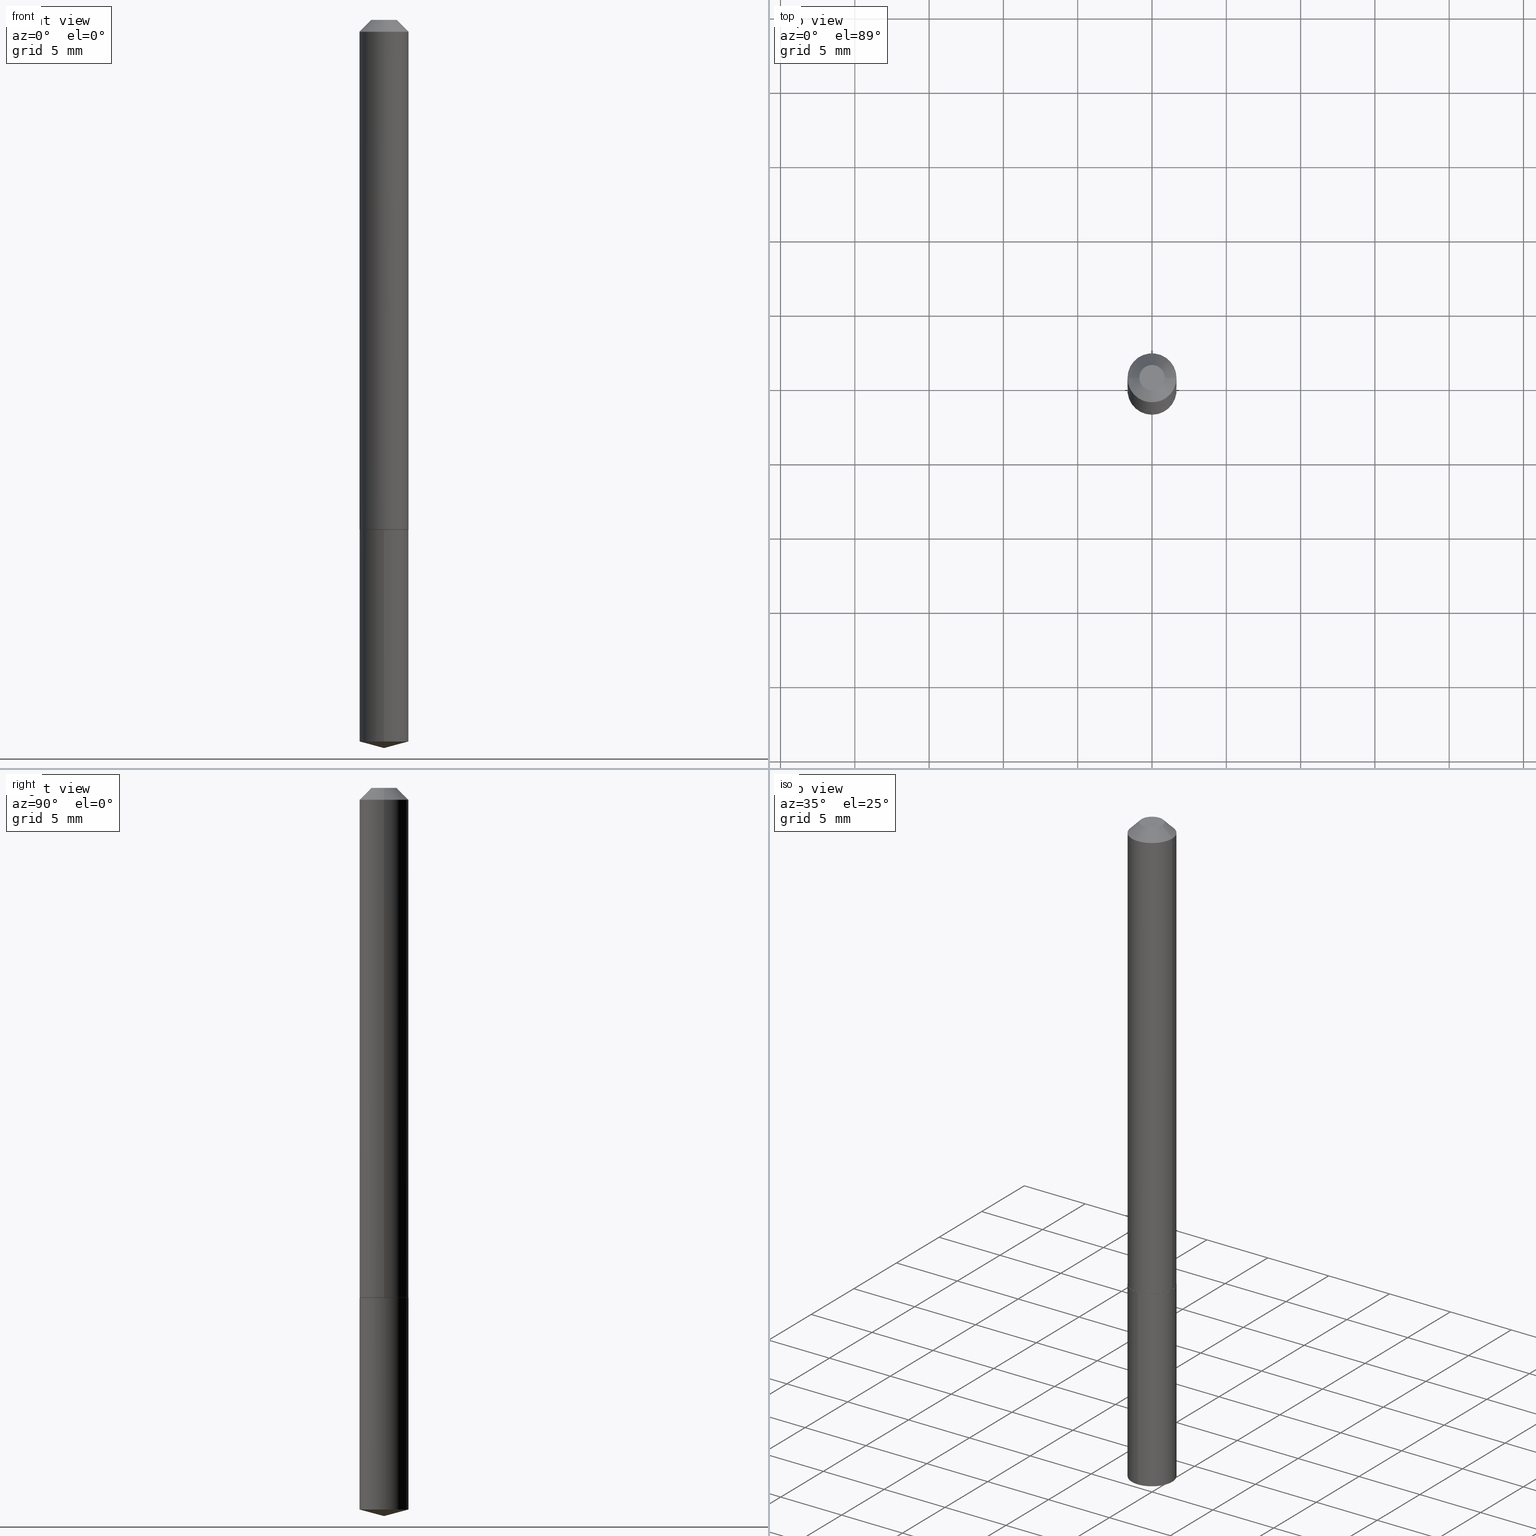
[diagram: canonical four-view strip — front | top / right | iso, engineering-drawing reading convention]
A machine part, canonical four-view strip (front | top / right | iso — engineering-drawing reading convention). The complete STEP part file that produces these views, byte-faithful:
ISO-10303-21;
HEADER;
FILE_DESCRIPTION (( 'STEP AP203' ),
    '1' );
FILE_NAME ('68968.STEP',
    '2024-04-23T13:56:20',
    ( '' ),
    ( '' ),
    'SwSTEP 2.0',
    'SolidWorks 2023',
    '' );
FILE_SCHEMA (( 'CONFIG_CONTROL_DESIGN' ));
ENDSEC;

DATA;
#1 = CALENDAR_DATE ( 2024, 23, 4 ) ;
#2 = ORIENTED_EDGE ( 'NONE', *, *, #301, .T. ) ;
#3 = CC_DESIGN_PERSON_AND_ORGANIZATION_ASSIGNMENT ( #248, #270, ( #71 ) ) ;
#4 = DATE_AND_TIME ( #1, #344 ) ;
#5 = DIRECTION ( 'NONE',  ( -6.982962677686267499E-15, -1.000000000000000000, 3.510303681827561547E-15 ) ) ;
#6 = CC_DESIGN_APPROVAL ( #62, ( #346 ) ) ;
#7 = DIRECTION ( 'NONE',  ( 1.000000000000000000, -6.982962677686265922E-15, 0.000000000000000000 ) ) ;
#8 = CARTESIAN_POINT ( 'NONE',  ( 4.717811205061667294E-29, -6.735048138052450726E-15, -1.929099999999999815 ) ) ;
#9 = ADVANCED_FACE ( 'NONE', ( #187 ), #216, .T. ) ;
#10 = FACE_OUTER_BOUND ( 'NONE', #363, .T. ) ;
#11 = CIRCLE ( 'NONE', #195, 0.06494999999999999385 ) ;
#12 = DIRECTION ( 'NONE',  ( -2.445468806185136877E-29, 3.491481338843145188E-15, 1.000000000000000000 ) ) ;
#13 = EDGE_CURVE ( 'NONE', #220, #328, #364, .T. ) ;
#14 = CARTESIAN_POINT ( 'NONE',  ( 3.302116528991790311E-29, -4.714547251839899498E-15, -1.350300000000000056 ) ) ;
#15 = DIRECTION ( 'NONE',  ( -6.982962677686266711E-15, -1.000000000000000000, 4.206078512185163024E-15 ) ) ;
#16 = PLANE ( 'NONE',  #146 ) ;
#17 = ORGANIZATION ( 'UNSPECIFIED', 'UNSPECIFIED', '' ) ;
#18 = ORIENTED_EDGE ( 'NONE', *, *, #265, .F. ) ;
#19 = APPLICATION_CONTEXT ( 'configuration controlled 3d designs of mechanical parts and assemblies' ) ;
#20 = ORIENTED_EDGE ( 'NONE', *, *, #281, .F. ) ;
#21 =( CONVERSION_BASED_UNIT ( 'INCH', #296 ) LENGTH_UNIT ( ) NAMED_UNIT ( #194 ) );
#22 = VECTOR ( 'NONE', #282, 39.37007874015748854 ) ;
#23 = VERTEX_POINT ( 'NONE', #101 ) ;
#24 = AXIS2_PLACEMENT_3D ( 'NONE', #137, #284, #78 ) ;
#25 = EDGE_CURVE ( 'NONE', #121, #55, #340, .T. ) ;
#26 = EDGE_CURVE ( 'NONE', #328, #307, #56, .T. ) ;
#27 = PERSON_AND_ORGANIZATION ( #66, #17 ) ;
#28 = ORIENTED_EDGE ( 'NONE', *, *, #281, .T. ) ;
#29 = DIRECTION ( 'NONE',  ( -2.445602200539976183E-29, 3.491290310534680378E-15, 1.000000000000000000 ) ) ;
#30 = ORIENTED_EDGE ( 'NONE', *, *, #348, .F. ) ;
#31 = CC_DESIGN_PERSON_AND_ORGANIZATION_ASSIGNMENT ( #191, #153, ( #71 ) ) ;
#32 = DIRECTION ( 'NONE',  ( 0.7071067811866078578, -2.468850131082888544E-15, 0.7071067811864871766 ) ) ;
#33 = AXIS2_PLACEMENT_3D ( 'NONE', #141, #202, #329 ) ;
#34 = FACE_OUTER_BOUND ( 'NONE', #386, .T. ) ;
#35 = DIRECTION ( 'NONE',  ( -2.445602200539976183E-29, 3.491290310534680378E-15, 1.000000000000000000 ) ) ;
#36 = DIRECTION ( 'NONE',  ( 2.445468806185136597E-29, -3.491481338843145583E-15, -1.000000000000000000 ) ) ;
#37 = CIRCLE ( 'NONE', #90, 0.03369999999999999385 ) ;
#38 = CC_DESIGN_APPROVAL ( #122, ( #304 ) ) ;
#39 = APPROVAL_ROLE ( '' ) ;
#40 = CARTESIAN_POINT ( 'NONE',  ( 0.03369999999999999385, -3.929484596595052854E-16, 2.388061258359294556E-19 ) ) ;
#41 = DIRECTION ( 'NONE',  ( 1.000000000000000000, -6.982962677686265922E-15, 4.876176775795935793E-29 ) ) ;
#42 = DIRECTION ( 'NONE',  ( -2.445468806185136597E-29, 3.491481338843145583E-15, 1.000000000000000000 ) ) ;
#43 = CIRCLE ( 'NONE', #356, 0.06494999999999999385 ) ;
#44 = DIRECTION ( 'NONE',  ( 1.000000000000000000, -6.982962677686265133E-15, 0.000000000000000000 ) ) ;
#45 = DIRECTION ( 'NONE',  ( 1.000000000000000000, -6.982962677686265922E-15, 0.000000000000000000 ) ) ;
#46 = CARTESIAN_POINT ( 'NONE',  ( 4.717814363983281700E-29, -6.735048138052451515E-15, -1.929099999999999815 ) ) ;
#47 = CONICAL_SURFACE ( 'NONE', #161, 146.9311341562583095, 1.308996938995752757 ) ;
#48 = EDGE_CURVE ( 'NONE', #220, #382, #278, .T. ) ;
#49 = AXIS2_PLACEMENT_3D ( 'NONE', #134, #107, #44 ) ;
#50 = CARTESIAN_POINT ( 'NONE',  ( -0.06494999999999999385, -1.949457644628476450E-15, -0.03125000000000020123 ) ) ;
#51 = EDGE_LOOP ( 'NONE', ( #293, #211, #236, #299 ) ) ;
#52 = DIRECTION ( 'NONE',  ( -2.445602200539976183E-29, 3.491290310534680378E-15, 1.000000000000000000 ) ) ;
#53 = ORIENTED_EDGE ( 'NONE', *, *, #128, .F. ) ;
#54 = DATE_TIME_ROLE ( 'creation_date' ) ;
#55 = VERTEX_POINT ( 'NONE', #215 ) ;
#56 = CIRCLE ( 'NONE', #193, 0.06495000000000016038 ) ;
#57 = ORIENTED_EDGE ( 'NONE', *, *, #274, .T. ) ;
#58 = CIRCLE ( 'NONE', #285, 0.06495000000000016038 ) ;
#59 = FACE_OUTER_BOUND ( 'NONE', #51, .T. ) ;
#60 = ORIENTED_EDGE ( 'NONE', *, *, #110, .F. ) ;
#61 = DIRECTION ( 'NONE',  ( -6.982962677686266711E-15, -1.000000000000000000, 4.206078512185163024E-15 ) ) ;
#62 = APPROVAL ( #79, 'UNSPECIFIED' ) ;
#63 = DIRECTION ( 'NONE',  ( -2.445468806185136597E-29, 3.491481338843145583E-15, 1.000000000000000000 ) ) ;
#64 = VECTOR ( 'NONE', #160, 39.37007874015748143 ) ;
#65 = LOCAL_TIME ( 9, 56, 20.00000000000000000, #367 ) ;
#66 = PERSON ( 'UNSPECIFIED', 'UNSPECIFIED', 'UNSPECIFIED', ('UNSPECIFIED'), ('UNSPECIFIED'), ('UNSPECIFIED') ) ;
#67 = DIRECTION ( 'NONE',  ( -2.445468806185136597E-29, 3.491481338843145583E-15, 1.000000000000000000 ) ) ;
#68 = ORIENTED_EDGE ( 'NONE', *, *, #269, .T. ) ;
#69 = DIRECTION ( 'NONE',  ( 0.7071067811865452413, -7.319954787623248157E-15, -0.7071067811865497932 ) ) ;
#70 = ADVANCED_FACE ( 'NONE', ( #221 ), #343, .T. ) ;
#71 = PRODUCT_DEFINITION_FORMATION_WITH_SPECIFIED_SOURCE ( 'ANY', '', #315, .NOT_KNOWN. ) ;
#72 = FACE_OUTER_BOUND ( 'NONE', #388, .T. ) ;
#73 = LINE ( 'NONE', #46, #325 ) ;
#74 = DIRECTION ( 'NONE',  ( -2.445468806185136597E-29, 3.491481338843145583E-15, 1.000000000000000000 ) ) ;
#75 = APPROVAL ( #276, 'UNSPECIFIED' ) ;
#76 = CONICAL_SURFACE ( 'NONE', #311, 0.06494999999999999385, 0.7853981633974450594 ) ;
#77 = LINE ( 'NONE', #102, #272 ) ;
#78 = DIRECTION ( 'NONE',  ( -6.982962677686266711E-15, -1.000000000000000000, 4.206078512185163024E-15 ) ) ;
#79 = APPROVAL_STATUS ( 'not_yet_approved' ) ;
#80 = MANIFOLD_SOLID_BREP ( 'Body-Move/Copy2[1]', #247 ) ;
#81 = CLOSED_SHELL ( 'NONE', ( #322, #326, #330, #320, #214, #70, #9, #255 ) ) ;
#82 = CARTESIAN_POINT ( 'NONE',  ( 4.675069533769300408E-29, -6.674546110747061798E-15, -1.911696699951598966 ) ) ;
#83 = ORIENTED_EDGE ( 'NONE', *, *, #265, .T. ) ;
#84 = DATE_AND_TIME ( #235, #279 ) ;
#85 = CC_DESIGN_PERSON_AND_ORGANIZATION_ASSIGNMENT ( #245, #189, ( #304 ) ) ;
#86 = EDGE_LOOP ( 'NONE', ( #18, #342 ) ) ;
#87 = EDGE_CURVE ( 'NONE', #382, #307, #157, .T. ) ;
#88 = ORIENTED_EDGE ( 'NONE', *, *, #115, .F. ) ;
#89 = DATE_AND_TIME ( #113, #351 ) ;
#90 = AXIS2_PLACEMENT_3D ( 'NONE', #302, #133, #390 ) ;
#91 = CIRCLE ( 'NONE', #49, 0.06494999999999999385 ) ;
#92 = COORDINATED_UNIVERSAL_TIME_OFFSET ( 5, 0, .BEHIND. ) ;
#93 = ORIENTED_EDGE ( 'NONE', *, *, #13, .F. ) ;
#94 = DATE_TIME_ROLE ( 'classification_date' ) ;
#95 = LINE ( 'NONE', #158, #183 ) ;
#96 = CARTESIAN_POINT ( 'NONE',  ( 0.06494999999999999385, -5.626522177545718995E-16, -0.03125000000000020123 ) ) ;
#97 = CALENDAR_DATE ( 2024, 23, 4 ) ;
#98 = FACE_OUTER_BOUND ( 'NONE', #174, .T. ) ;
#99 = ADVANCED_FACE ( 'NONE', ( #244 ), #47, .T. ) ;
#100 = COORDINATED_UNIVERSAL_TIME_OFFSET ( 5, 0, .BEHIND. ) ;
#101 = CARTESIAN_POINT ( 'NONE',  ( -4.535434259156762560E-16, -0.06495000000000668294, -1.911696699951598521 ) ) ;
#102 = CARTESIAN_POINT ( 'NONE',  ( -0.06494999999999999385, 3.444346340768739447E-16, -0.03125000000000020123 ) ) ;
#103 = CC_DESIGN_APPROVAL ( #75, ( #71 ) ) ;
#104 = FACE_OUTER_BOUND ( 'NONE', #151, .T. ) ;
#105 = CC_DESIGN_PERSON_AND_ORGANIZATION_ASSIGNMENT ( #233, #327, ( #346 ) ) ;
#106 = CARTESIAN_POINT ( 'NONE',  ( 3.302116528991790311E-29, -4.714547251839899498E-15, -1.350300000000000056 ) ) ;
#107 = DIRECTION ( 'NONE',  ( -2.445468806185136597E-29, 3.491481338843145583E-15, 1.000000000000000000 ) ) ;
#108 = VECTOR ( 'NONE', #225, 39.37007874015748143 ) ;
#109 = DIRECTION ( 'NONE',  ( 6.982962677686265922E-15, 1.000000000000000000, -3.491290310534680772E-15 ) ) ;
#110 = EDGE_CURVE ( 'NONE', #120, #114, #95, .T. ) ;
#111 = PERSON_AND_ORGANIZATION ( #66, #17 ) ;
#112 = APPLICATION_CONTEXT ( 'configuration controlled 3d designs of mechanical parts and assemblies' ) ;
#113 = CALENDAR_DATE ( 2024, 23, 4 ) ;
#114 = VERTEX_POINT ( 'NONE', #96 ) ;
#115 = EDGE_CURVE ( 'NONE', #121, #23, #259, .T. ) ;
#116 = CONICAL_SURFACE ( 'NONE', #154, 0.06495000000000016038, 0.7853981633975336552 ) ;
#117 = DIRECTION ( 'NONE',  ( -2.445468806185136597E-29, 3.491481338843145583E-15, 1.000000000000000000 ) ) ;
#118 = ORIENTED_EDGE ( 'NONE', *, *, #110, .T. ) ;
#119 = CARTESIAN_POINT ( 'NONE',  ( 0.000000000000000000, 0.000000000000000000, 0.000000000000000000 ) ) ;
#120 = VERTEX_POINT ( 'NONE', #40 ) ;
#121 = VERTEX_POINT ( 'NONE', #181 ) ;
#122 = APPROVAL ( #129, 'UNSPECIFIED' ) ;
#123 = ORIENTED_EDGE ( 'NONE', *, *, #87, .F. ) ;
#124 = AXIS2_PLACEMENT_3D ( 'NONE', #246, #277, #5 ) ;
#125 = CARTESIAN_POINT ( 'NONE',  ( 4.614975068762179620E-16, 0.06494999999999528928, -1.350300000000000278 ) ) ;
#126 = DIRECTION ( 'NONE',  ( -2.445602200539976183E-29, 3.491290310534680772E-15, 1.000000000000000000 ) ) ;
#127 = CC_DESIGN_PERSON_AND_ORGANIZATION_ASSIGNMENT ( #27, #385, ( #315 ) ) ;
#128 = EDGE_CURVE ( 'NONE', #142, #23, #338, .T. ) ;
#129 = APPROVAL_STATUS ( 'not_yet_approved' ) ;
#130 = EDGE_LOOP ( 'NONE', ( #60, #262, #68, #290 ) ) ;
#131 = AXIS2_PLACEMENT_3D ( 'NONE', #167, #228, #283 ) ;
#132 = CARTESIAN_POINT ( 'NONE',  ( 0.000000000000000000, 0.000000000000000000, 0.000000000000000000 ) ) ;
#133 = DIRECTION ( 'NONE',  ( -2.445468806185136597E-29, 3.491481338843145583E-15, 1.000000000000000000 ) ) ;
#134 = CARTESIAN_POINT ( 'NONE',  ( 7.642090019328601786E-31, -1.091087918388490144E-16, -0.03125000000000020123 ) ) ;
#135 = AXIS2_PLACEMENT_3D ( 'NONE', #288, #42, #136 ) ;
#136 = DIRECTION ( 'NONE',  ( 1.000000000000000000, -6.982962677686269077E-15, 0.000000000000000000 ) ) ;
#137 = CARTESIAN_POINT ( 'NONE',  ( 3.302116528991790311E-29, -4.714547251839899498E-15, -1.350300000000000056 ) ) ;
#138 = PLANE ( 'NONE',  #131 ) ;
#139 = AXIS2_PLACEMENT_3D ( 'NONE', #334, #117, #204 ) ;
#140 = CARTESIAN_POINT ( 'NONE',  ( -0.03369999999999999385, 2.898802381574505777E-16, 2.388061258318971361E-19 ) ) ;
#141 = CARTESIAN_POINT ( 'NONE',  ( 0.000000000000000000, 0.000000000000000000, 0.000000000000000000 ) ) ;
#142 = VERTEX_POINT ( 'NONE', #8 ) ;
#143 = EDGE_CURVE ( 'NONE', #120, #267, #332, .T. ) ;
#144 = APPROVAL_ROLE ( '' ) ;
#145 = ORIENTED_EDGE ( 'NONE', *, *, #115, .T. ) ;
#146 = AXIS2_PLACEMENT_3D ( 'NONE', #261, #314, #41 ) ;
#147 = APPLICATION_PROTOCOL_DEFINITION ( 'international standard', 'config_control_design', 1994, #19 ) ;
#148 = ORIENTED_EDGE ( 'NONE', *, *, #292, .T. ) ;
#149 = DIRECTION ( 'NONE',  ( 1.000000000000000000, -6.982962677686267499E-15, 4.876176775795936914E-29 ) ) ;
#150 = CC_DESIGN_DATE_AND_TIME_ASSIGNMENT ( #4, #94, ( #304 ) ) ;
#151 = EDGE_LOOP ( 'NONE', ( #93, #243, #205, #240 ) ) ;
#152 = EDGE_LOOP ( 'NONE', ( #234, #335, #28, #177 ) ) ;
#153 = PERSON_AND_ORGANIZATION_ROLE ( 'design_supplier' ) ;
#154 = AXIS2_PLACEMENT_3D ( 'NONE', #352, #200, #317 ) ;
#155 = CARTESIAN_POINT ( 'NONE',  ( 0.06495000000000016038, -5.166344937086201976E-15, -1.349800000000000111 ) ) ;
#156 = DATE_AND_TIME ( #97, #65 ) ;
#157 = LINE ( 'NONE', #155, #323 ) ;
#158 = CARTESIAN_POINT ( 'NONE',  ( 0.06494999999999999385, -5.546981367941099671E-16, -0.03125000000000020123 ) ) ;
#159 = APPROVAL_DATE_TIME ( #217, #75 ) ;
#160 = DIRECTION ( 'NONE',  ( -0.7071067811866078578, 7.493145998870571886E-15, 0.7071067811864871766 ) ) ;
#161 = AXIS2_PLACEMENT_3D ( 'NONE', #368, #306, #336 ) ;
#162 = AXIS2_PLACEMENT_3D ( 'NONE', #349, #74, #287 ) ;
#163 = EDGE_CURVE ( 'NONE', #267, #120, #37, .T. ) ;
#164 = CARTESIAN_POINT ( 'NONE',  ( 4.717450960266987548E-29, -6.735564029102293055E-15, -1.929099999999999815 ) ) ;
#165 = CARTESIAN_POINT ( 'NONE',  ( -0.06495000000000007712, 4.614975068761856187E-16, -3.194848341120565109E-30 ) ) ;
#166 = PLANE ( 'NONE',  #362 ) ;
#167 = CARTESIAN_POINT ( 'NONE',  ( -2.919964657261587705E-48, 4.168935659749540379E-34, 1.194030629168666829E-19 ) ) ;
#168 = DIRECTION ( 'NONE',  ( -2.445602200539976183E-29, 3.491290310534680378E-15, 1.000000000000000000 ) ) ;
#169 = DIRECTION ( 'NONE',  ( -6.982962677686266711E-15, -1.000000000000000000, 4.206078512185163024E-15 ) ) ;
#170 = AXIS2_PLACEMENT_3D ( 'NONE', #273, #63, #365 ) ;
#171 = VECTOR ( 'NONE', #12, 39.37007874015748143 ) ;
#172 = ORIENTED_EDGE ( 'NONE', *, *, #269, .F. ) ;
#173 = CARTESIAN_POINT ( 'NONE',  ( 0.06445000000000018769, -5.164599196416781262E-15, -1.350300000000000056 ) ) ;
#174 = EDGE_LOOP ( 'NONE', ( #190, #358 ) ) ;
#175 = PERSON_AND_ORGANIZATION ( #66, #17 ) ;
#176 = ORIENTED_EDGE ( 'NONE', *, *, #163, .T. ) ;
#177 = ORIENTED_EDGE ( 'NONE', *, *, #309, .F. ) ;
#178 = CARTESIAN_POINT ( 'NONE',  ( -4.535434259156899625E-16, -0.06495000000000471230, -1.350299999999999834 ) ) ;
#179 = ORIENTED_EDGE ( 'NONE', *, *, #13, .T. ) ;
#180 = ADVANCED_FACE ( 'NONE', ( #34 ), #241, .T. ) ;
#181 = CARTESIAN_POINT ( 'NONE',  ( 4.614975068762317670E-16, 0.06494999999999333251, -1.911696699951599188 ) ) ;
#182 = DESIGN_CONTEXT ( 'detailed design', #19, 'design' ) ;
#183 = VECTOR ( 'NONE', #69, 39.37007874015748143 ) ;
#184 = PERSON_AND_ORGANIZATION ( #66, #17 ) ;
#185 = CIRCLE ( 'NONE', #162, 0.06494999999999999385 ) ;
#186 = DIRECTION ( 'NONE',  ( -2.445468806185136597E-29, 3.491481338843145583E-15, 1.000000000000000000 ) ) ;
#187 = FACE_OUTER_BOUND ( 'NONE', #130, .T. ) ;
#188 = ADVANCED_FACE ( 'NONE', ( #98 ), #166, .F. ) ;
#189 = PERSON_AND_ORGANIZATION_ROLE ( 'classification_officer' ) ;
#190 = ORIENTED_EDGE ( 'NONE', *, *, #229, .T. ) ;
#191 = PERSON_AND_ORGANIZATION ( #66, #17 ) ;
#192 = ORIENTED_EDGE ( 'NONE', *, *, #143, .F. ) ;
#193 = AXIS2_PLACEMENT_3D ( 'NONE', #252, #280, #7 ) ;
#194 = DIMENSIONAL_EXPONENTS ( 1.000000000000000000, 0.000000000000000000, 0.000000000000000000, 0.000000000000000000, 0.000000000000000000, 0.000000000000000000, 0.000000000000000000 ) ;
#195 = AXIS2_PLACEMENT_3D ( 'NONE', #82, #52, #294 ) ;
#196 = DIRECTION ( 'NONE',  ( -0.7071067811865452413, 2.468850131082233000E-15, -0.7071067811865497932 ) ) ;
#197 = DIRECTION ( 'NONE',  ( -1.000000000000000000, 6.982962677686266711E-15, 0.000000000000000000 ) ) ;
#198 = FACE_OUTER_BOUND ( 'NONE', #86, .T. ) ;
#199 = AXIS2_PLACEMENT_3D ( 'NONE', #312, #35, #61 ) ;
#200 = DIRECTION ( 'NONE',  ( -2.445468806185136597E-29, 3.491481338843145583E-15, 1.000000000000000000 ) ) ;
#201 = DIRECTION ( 'NONE',  ( -2.445468806185136597E-29, 3.491481338843145583E-15, 1.000000000000000000 ) ) ;
#202 = DIRECTION ( 'NONE',  ( 0.000000000000000000, 0.000000000000000000, 1.000000000000000000 ) ) ;
#203 =( GEOMETRIC_REPRESENTATION_CONTEXT ( 3 ) GLOBAL_UNCERTAINTY_ASSIGNED_CONTEXT ( ( #337 ) ) GLOBAL_UNIT_ASSIGNED_CONTEXT ( ( #21, #378, #354 ) ) REPRESENTATION_CONTEXT ( 'NONE', 'WORKASPACE' ) );
#204 = DIRECTION ( 'NONE',  ( 1.000000000000000000, -6.982962677686265922E-15, 0.000000000000000000 ) ) ;
#205 = ORIENTED_EDGE ( 'NONE', *, *, #87, .T. ) ;
#206 = ORIENTED_EDGE ( 'NONE', *, *, #232, .F. ) ;
#207 = CYLINDRICAL_SURFACE ( 'NONE', #218, 0.06494999999999999385 ) ;
#208 = AXIS2_PLACEMENT_3D ( 'NONE', #370, #186, #305 ) ;
#209 = APPROVAL_PERSON_ORGANIZATION ( #184, #122, #39 ) ;
#210 = FACE_OUTER_BOUND ( 'NONE', #219, .T. ) ;
#211 = ORIENTED_EDGE ( 'NONE', *, *, #25, .T. ) ;
#212 = SHAPE_DEFINITION_REPRESENTATION ( #318, #308 ) ;
#213 = DIRECTION ( 'NONE',  ( 1.000000000000000000, -6.982962677686267499E-15, 4.876176775795936914E-29 ) ) ;
#214 = ADVANCED_FACE ( 'NONE', ( #104 ), #116, .T. ) ;
#215 = CARTESIAN_POINT ( 'NONE',  ( 4.614975068762317670E-16, 0.06494999999999528928, -1.350300000000000278 ) ) ;
#216 = CONICAL_SURFACE ( 'NONE', #375, 0.06494999999999999385, 0.7853981633974450594 ) ;
#217 = DATE_AND_TIME ( #300, #377 ) ;
#218 = AXIS2_PLACEMENT_3D ( 'NONE', #266, #29, #237 ) ;
#219 = EDGE_LOOP ( 'NONE', ( #83, #179, #271, #123 ) ) ;
#220 = VERTEX_POINT ( 'NONE', #373 ) ;
#221 = FACE_OUTER_BOUND ( 'NONE', #152, .T. ) ;
#222 = AXIS2_PLACEMENT_3D ( 'NONE', #132, #67, #213 ) ;
#223 = FACE_OUTER_BOUND ( 'NONE', #268, .T. ) ;
#224 = CIRCLE ( 'NONE', #366, 0.06494999999999999385 ) ;
#225 = DIRECTION ( 'NONE',  ( -2.445602200539976183E-29, 3.491290310534680772E-15, 1.000000000000000000 ) ) ;
#226 = EDGE_CURVE ( 'NONE', #55, #360, #43, .T. ) ;
#227 = CARTESIAN_POINT ( 'NONE',  ( -4.535434259156899625E-16, -0.06495000000000471230, -1.350299999999999834 ) ) ;
#228 = DIRECTION ( 'NONE',  ( 2.438088387897960049E-29, -3.491481338843145188E-15, -1.000000000000000000 ) ) ;
#229 = EDGE_CURVE ( 'NONE', #360, #55, #224, .T. ) ;
#230 = DIRECTION ( 'NONE',  ( 2.445602200539975343E-29, -3.491290310534680772E-15, -1.000000000000000000 ) ) ;
#231 = CYLINDRICAL_SURFACE ( 'NONE', #383, 0.06495000000000007712 ) ;
#232 = EDGE_CURVE ( 'NONE', #114, #331, #91, .T. ) ;
#233 = PERSON_AND_ORGANIZATION ( #66, #17 ) ;
#234 = ORIENTED_EDGE ( 'NONE', *, *, #274, .F. ) ;
#235 = CALENDAR_DATE ( 2024, 23, 4 ) ;
#236 = ORIENTED_EDGE ( 'NONE', *, *, #229, .F. ) ;
#237 = DIRECTION ( 'NONE',  ( -6.982962677686266711E-15, -1.000000000000000000, 4.206078512185163024E-15 ) ) ;
#238 = CC_DESIGN_DATE_AND_TIME_ASSIGNMENT ( #84, #54, ( #346 ) ) ;
#239 = EDGE_LOOP ( 'NONE', ( #148, #57, #206, #20 ) ) ;
#240 = ORIENTED_EDGE ( 'NONE', *, *, #26, .F. ) ;
#241 = CONICAL_SURFACE ( 'NONE', #124, 146.9311341562583095, 1.308996938995752757 ) ;
#242 = CIRCLE ( 'NONE', #135, 0.06445000000000018769 ) ;
#243 = ORIENTED_EDGE ( 'NONE', *, *, #48, .T. ) ;
#244 = FACE_OUTER_BOUND ( 'NONE', #295, .T. ) ;
#245 = PERSON_AND_ORGANIZATION ( #66, #17 ) ;
#246 = CARTESIAN_POINT ( 'NONE',  ( -9.156592011969693479E-28, 1.307170683469218614E-13, 37.44097874015747607 ) ) ;
#247 = CLOSED_SHELL ( 'NONE', ( #341, #180, #99, #291, #188 ) ) ;
#248 = PERSON_AND_ORGANIZATION ( #66, #17 ) ;
#249 = APPROVAL_PERSON_ORGANIZATION ( #111, #62, #144 ) ;
#250 = DIRECTION ( 'NONE',  ( -1.000000000000000000, 6.982962677686266711E-15, 0.000000000000000000 ) ) ;
#251 = CARTESIAN_POINT ( 'NONE',  ( 7.642090019328601786E-31, -1.091087918388490144E-16, -0.03125000000000020123 ) ) ;
#252 = CARTESIAN_POINT ( 'NONE',  ( 3.300893794588698070E-29, -4.712801511170477994E-15, -1.349800000000000111 ) ) ;
#253 = CARTESIAN_POINT ( 'NONE',  ( 0.06495000000000016038, -5.166344937086201976E-15, -1.349800000000000111 ) ) ;
#254 = APPROVAL_PERSON_ORGANIZATION ( #175, #75, #387 ) ;
#255 = ADVANCED_FACE ( 'NONE', ( #72 ), #138, .F. ) ;
#256 = CARTESIAN_POINT ( 'NONE',  ( 3.300893794588698070E-29, -4.712801511170477994E-15, -1.349800000000000111 ) ) ;
#257 = DIRECTION ( 'NONE',  ( -2.445602200539976183E-29, 3.491290310534680378E-15, 1.000000000000000000 ) ) ;
#258 = CARTESIAN_POINT ( 'NONE',  ( 3.302116528991790311E-29, -4.714547251839899498E-15, -1.350300000000000056 ) ) ;
#259 = CIRCLE ( 'NONE', #199, 0.06494999999999999385 ) ;
#260 = CC_DESIGN_SECURITY_CLASSIFICATION ( #304, ( #71 ) ) ;
#261 = CARTESIAN_POINT ( 'NONE',  ( 3.302116528991790311E-29, -4.714547251839899498E-15, -1.350300000000000056 ) ) ;
#262 = ORIENTED_EDGE ( 'NONE', *, *, #163, .F. ) ;
#263 = COORDINATED_UNIVERSAL_TIME_OFFSET ( 5, 0, .BEHIND. ) ;
#264 = ORIENTED_EDGE ( 'NONE', *, *, #128, .T. ) ;
#265 = EDGE_CURVE ( 'NONE', #382, #220, #242, .T. ) ;
#266 = CARTESIAN_POINT ( 'NONE',  ( 3.302116528991790311E-29, -4.714547251839899498E-15, -1.350300000000000056 ) ) ;
#267 = VERTEX_POINT ( 'NONE', #140 ) ;
#268 = EDGE_LOOP ( 'NONE', ( #324, #145, #2, #384 ) ) ;
#269 = EDGE_CURVE ( 'NONE', #267, #331, #77, .T. ) ;
#270 = PERSON_AND_ORGANIZATION_ROLE ( 'creator' ) ;
#271 = ORIENTED_EDGE ( 'NONE', *, *, #292, .F. ) ;
#272 = VECTOR ( 'NONE', #196, 39.37007874015748143 ) ;
#273 = CARTESIAN_POINT ( 'NONE',  ( 3.302116528991790311E-29, -4.714547251839899498E-15, -1.350300000000000056 ) ) ;
#274 = EDGE_CURVE ( 'NONE', #328, #331, #374, .T. ) ;
#275 = ORIENTED_EDGE ( 'NONE', *, *, #143, .T. ) ;
#276 = APPROVAL_STATUS ( 'not_yet_approved' ) ;
#277 = DIRECTION ( 'NONE',  ( -2.445602200539976183E-29, 3.491290310534680378E-15, 1.000000000000000000 ) ) ;
#278 = CIRCLE ( 'NONE', #170, 0.06445000000000018769 ) ;
#279 = LOCAL_TIME ( 9, 56, 20.00000000000000000, #263 ) ;
#280 = DIRECTION ( 'NONE',  ( -2.445468806185136597E-29, 3.491481338843145583E-15, 1.000000000000000000 ) ) ;
#281 = EDGE_CURVE ( 'NONE', #307, #114, #345, .T. ) ;
#282 = DIRECTION ( 'NONE',  ( -6.745023994389847021E-15, -0.9659258262890687563, 0.2588190451025186856 ) ) ;
#283 = DIRECTION ( 'NONE',  ( -1.000000000000000000, 6.982962677686265922E-15, -4.876176775795935793E-29 ) ) ;
#284 = DIRECTION ( 'NONE',  ( -2.445602200539976183E-29, 3.491290310534680378E-15, 1.000000000000000000 ) ) ;
#285 = AXIS2_PLACEMENT_3D ( 'NONE', #256, #201, #45 ) ;
#286 = CARTESIAN_POINT ( 'NONE',  ( 0.06495000000000007712, -4.535434259157235877E-16, 3.167076815879464619E-30 ) ) ;
#287 = DIRECTION ( 'NONE',  ( 1.000000000000000000, -6.982962677686265133E-15, 0.000000000000000000 ) ) ;
#288 = CARTESIAN_POINT ( 'NONE',  ( 3.302116528991790311E-29, -4.714547251839899498E-15, -1.350300000000000056 ) ) ;
#289 = APPLICATION_PROTOCOL_DEFINITION ( 'international standard', 'config_control_design', 1994, #112 ) ;
#290 = ORIENTED_EDGE ( 'NONE', *, *, #309, .T. ) ;
#291 = ADVANCED_FACE ( 'NONE', ( #223 ), #319, .T. ) ;
#292 = EDGE_CURVE ( 'NONE', #307, #328, #58, .T. ) ;
#293 = ORIENTED_EDGE ( 'NONE', *, *, #348, .T. ) ;
#294 = DIRECTION ( 'NONE',  ( -6.982962677686266711E-15, -1.000000000000000000, 4.206078512185163024E-15 ) ) ;
#295 = EDGE_LOOP ( 'NONE', ( #379, #264, #88 ) ) ;
#296 = LENGTH_MEASURE_WITH_UNIT ( LENGTH_MEASURE( 0.02539999999999999897 ), #359 );
#297 = ORIENTED_EDGE ( 'NONE', *, *, #313, .T. ) ;
#298 = APPROVAL_DATE_TIME ( #89, #62 ) ;
#299 = ORIENTED_EDGE ( 'NONE', *, *, #301, .F. ) ;
#300 = CALENDAR_DATE ( 2024, 23, 4 ) ;
#301 = EDGE_CURVE ( 'NONE', #23, #360, #321, .T. ) ;
#302 = CARTESIAN_POINT ( 'NONE',  ( -5.839929314523175409E-48, 8.337871319499080759E-34, 2.388061258337333659E-19 ) ) ;
#303 = VECTOR ( 'NONE', #126, 39.37007874015748143 ) ;
#304 = SECURITY_CLASSIFICATION ( '', '', #310 ) ;
#305 = DIRECTION ( 'NONE',  ( 1.000000000000000000, -6.982962677686267499E-15, 4.876196328173749550E-29 ) ) ;
#306 = DIRECTION ( 'NONE',  ( -2.445602200539976183E-29, 3.491290310534680378E-15, 1.000000000000000000 ) ) ;
#307 = VERTEX_POINT ( 'NONE', #253 ) ;
#308 = ADVANCED_BREP_SHAPE_REPRESENTATION ( '68968', ( #80, #339, #33 ), #203 ) ;
#309 = EDGE_CURVE ( 'NONE', #331, #114, #185, .T. ) ;
#310 = SECURITY_CLASSIFICATION_LEVEL ( 'unclassified' ) ;
#311 = AXIS2_PLACEMENT_3D ( 'NONE', #372, #347, #197 ) ;
#312 = CARTESIAN_POINT ( 'NONE',  ( 4.675069533769300408E-29, -6.674546110747061798E-15, -1.911696699951598966 ) ) ;
#313 = EDGE_CURVE ( 'NONE', #142, #121, #73, .T. ) ;
#314 = DIRECTION ( 'NONE',  ( -2.438088387897960049E-29, 3.491481338843145188E-15, 1.000000000000000000 ) ) ;
#315 = PRODUCT ( '68968', '68968', '', ( #381 ) ) ;
#316 = FACE_OUTER_BOUND ( 'NONE', #239, .T. ) ;
#317 = DIRECTION ( 'NONE',  ( 1.000000000000000000, -6.982962677686265922E-15, 0.000000000000000000 ) ) ;
#318 = PRODUCT_DEFINITION_SHAPE ( 'NONE', 'NONE',  #346 ) ;
#319 = CYLINDRICAL_SURFACE ( 'NONE', #24, 0.06494999999999999385 ) ;
#320 = ADVANCED_FACE ( 'NONE', ( #198 ), #16, .F. ) ;
#321 = LINE ( 'NONE', #227, #108 ) ;
#322 = ADVANCED_FACE ( 'NONE', ( #10 ), #76, .T. ) ;
#323 = VECTOR ( 'NONE', #32, 39.37007874015748143 ) ;
#324 = ORIENTED_EDGE ( 'NONE', *, *, #25, .F. ) ;
#325 = VECTOR ( 'NONE', #376, 39.37007874015748854 ) ;
#326 = ADVANCED_FACE ( 'NONE', ( #316 ), #231, .T. ) ;
#327 = PERSON_AND_ORGANIZATION_ROLE ( 'creator' ) ;
#328 = VERTEX_POINT ( 'NONE', #353 ) ;
#329 = DIRECTION ( 'NONE',  ( 1.000000000000000000, 0.000000000000000000, 0.000000000000000000 ) ) ;
#330 = ADVANCED_FACE ( 'NONE', ( #210 ), #371, .T. ) ;
#331 = VERTEX_POINT ( 'NONE', #50 ) ;
#332 = CIRCLE ( 'NONE', #208, 0.03369999999999999385 ) ;
#333 = VECTOR ( 'NONE', #350, 39.37007874015748143 ) ;
#334 = CARTESIAN_POINT ( 'NONE',  ( 3.300893794588698070E-29, -4.712801511170477994E-15, -1.349800000000000111 ) ) ;
#335 = ORIENTED_EDGE ( 'NONE', *, *, #26, .T. ) ;
#336 = DIRECTION ( 'NONE',  ( -6.982962677686267499E-15, -1.000000000000000000, 3.510303681827561547E-15 ) ) ;
#337 = UNCERTAINTY_MEASURE_WITH_UNIT (LENGTH_MEASURE( 1.000000000000000082E-05 ), #21, 'distance_accuracy_value', 'NONE');
#338 = LINE ( 'NONE', #164, #22 ) ;
#339 = MANIFOLD_SOLID_BREP ( 'Body-Move/Copy2[2]', #81 ) ;
#340 = LINE ( 'NONE', #125, #303 ) ;
#341 = ADVANCED_FACE ( 'NONE', ( #59 ), #207, .T. ) ;
#342 = ORIENTED_EDGE ( 'NONE', *, *, #48, .F. ) ;
#343 = CYLINDRICAL_SURFACE ( 'NONE', #222, 0.06495000000000007712 ) ;
#344 = LOCAL_TIME ( 9, 56, 20.00000000000000000, #100 ) ;
#345 = LINE ( 'NONE', #286, #333 ) ;
#346 = PRODUCT_DEFINITION ( 'UNKNOWN', '', #71, #182 ) ;
#347 = DIRECTION ( 'NONE',  ( 2.445468806185136597E-29, -3.491481338843145583E-15, -1.000000000000000000 ) ) ;
#348 = EDGE_CURVE ( 'NONE', #23, #121, #11, .T. ) ;
#349 = CARTESIAN_POINT ( 'NONE',  ( 7.642090019328601786E-31, -1.091087918388490144E-16, -0.03125000000000020123 ) ) ;
#350 = DIRECTION ( 'NONE',  ( -2.445468806185136877E-29, 3.491481338843145188E-15, 1.000000000000000000 ) ) ;
#351 = LOCAL_TIME ( 9, 56, 20.00000000000000000, #361 ) ;
#352 = CARTESIAN_POINT ( 'NONE',  ( 3.300893794588698070E-29, -4.712801511170477994E-15, -1.349800000000000111 ) ) ;
#353 = CARTESIAN_POINT ( 'NONE',  ( -0.06495000000000016038, -4.251304004294291685E-15, -1.349800000000000111 ) ) ;
#354 =( NAMED_UNIT ( * ) SI_UNIT ( $, .STERADIAN. ) SOLID_ANGLE_UNIT ( ) );
#355 = ORIENTED_EDGE ( 'NONE', *, *, #232, .T. ) ;
#356 = AXIS2_PLACEMENT_3D ( 'NONE', #106, #168, #15 ) ;
#357 = DIRECTION ( 'NONE',  ( -2.445468806185136597E-29, 3.491481338843145583E-15, 1.000000000000000000 ) ) ;
#358 = ORIENTED_EDGE ( 'NONE', *, *, #226, .T. ) ;
#359 =( LENGTH_UNIT ( ) NAMED_UNIT ( * ) SI_UNIT ( $, .METRE. ) );
#360 = VERTEX_POINT ( 'NONE', #178 ) ;
#361 = COORDINATED_UNIVERSAL_TIME_OFFSET ( 5, 0, .BEHIND. ) ;
#362 = AXIS2_PLACEMENT_3D ( 'NONE', #14, #230, #109 ) ;
#363 = EDGE_LOOP ( 'NONE', ( #192, #118, #355, #172 ) ) ;
#364 = LINE ( 'NONE', #369, #64 ) ;
#365 = DIRECTION ( 'NONE',  ( 1.000000000000000000, -6.982962677686269077E-15, 0.000000000000000000 ) ) ;
#366 = AXIS2_PLACEMENT_3D ( 'NONE', #258, #257, #169 ) ;
#367 = COORDINATED_UNIVERSAL_TIME_OFFSET ( 5, 0, .BEHIND. ) ;
#368 = CARTESIAN_POINT ( 'NONE',  ( -9.156592011969693479E-28, 1.307170683469218614E-13, 37.44097874015747607 ) ) ;
#369 = CARTESIAN_POINT ( 'NONE',  ( -0.06495000000000016038, -4.251304004294291685E-15, -1.349800000000000111 ) ) ;
#370 = CARTESIAN_POINT ( 'NONE',  ( -5.839929314523175409E-48, 8.337871319499080759E-34, 2.388061258337333659E-19 ) ) ;
#371 = CONICAL_SURFACE ( 'NONE', #139, 0.06495000000000016038, 0.7853981633975336552 ) ;
#372 = CARTESIAN_POINT ( 'NONE',  ( 7.642090019328601786E-31, -1.091087918388490144E-16, -0.03125000000000020123 ) ) ;
#373 = CARTESIAN_POINT ( 'NONE',  ( -0.06445000000000018769, -4.253953231468402886E-15, -1.350300000000000056 ) ) ;
#374 = LINE ( 'NONE', #165, #171 ) ;
#375 = AXIS2_PLACEMENT_3D ( 'NONE', #251, #36, #250 ) ;
#376 = DIRECTION ( 'NONE',  ( 6.863315791527700570E-15, 0.9659258262890705327, 0.2588190451025119132 ) ) ;
#377 = LOCAL_TIME ( 9, 56, 20.00000000000000000, #92 ) ;
#378 =( NAMED_UNIT ( * ) PLANE_ANGLE_UNIT ( ) SI_UNIT ( $, .RADIAN. ) );
#379 = ORIENTED_EDGE ( 'NONE', *, *, #313, .F. ) ;
#380 = PRODUCT_RELATED_PRODUCT_CATEGORY ( 'detail', '', ( #315 ) ) ;
#381 = MECHANICAL_CONTEXT ( 'NONE', #112, 'mechanical' ) ;
#382 = VERTEX_POINT ( 'NONE', #173 ) ;
#383 = AXIS2_PLACEMENT_3D ( 'NONE', #119, #357, #149 ) ;
#384 = ORIENTED_EDGE ( 'NONE', *, *, #226, .F. ) ;
#385 = PERSON_AND_ORGANIZATION_ROLE ( 'design_owner' ) ;
#386 = EDGE_LOOP ( 'NONE', ( #53, #297, #30 ) ) ;
#387 = APPROVAL_ROLE ( '' ) ;
#388 = EDGE_LOOP ( 'NONE', ( #176, #275 ) ) ;
#389 = APPROVAL_DATE_TIME ( #156, #122 ) ;
#390 = DIRECTION ( 'NONE',  ( 1.000000000000000000, -6.982962677686267499E-15, 4.876196328173749550E-29 ) ) ;
ENDSEC;
END-ISO-10303-21;
